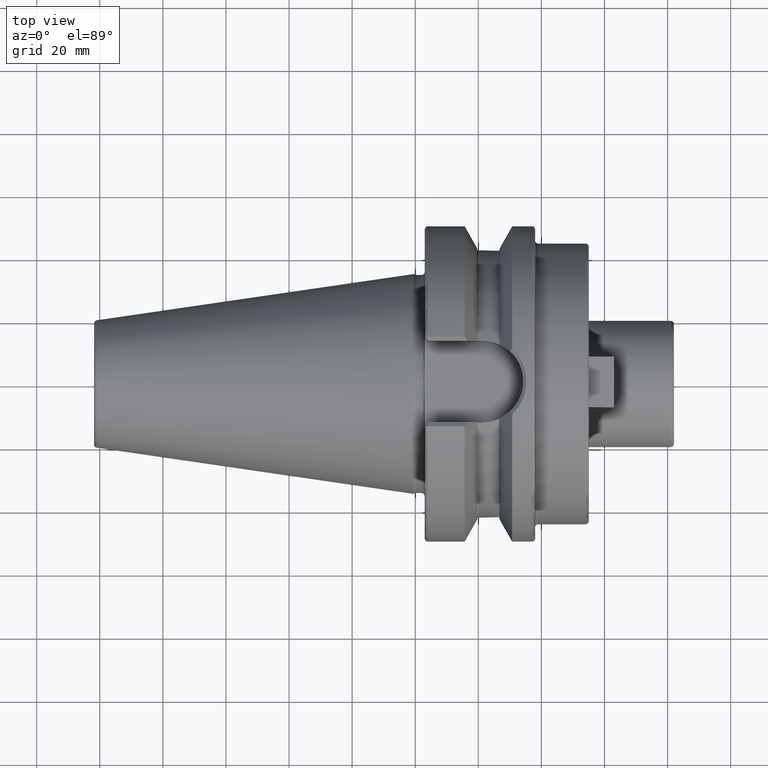
[diagram: clean part render]
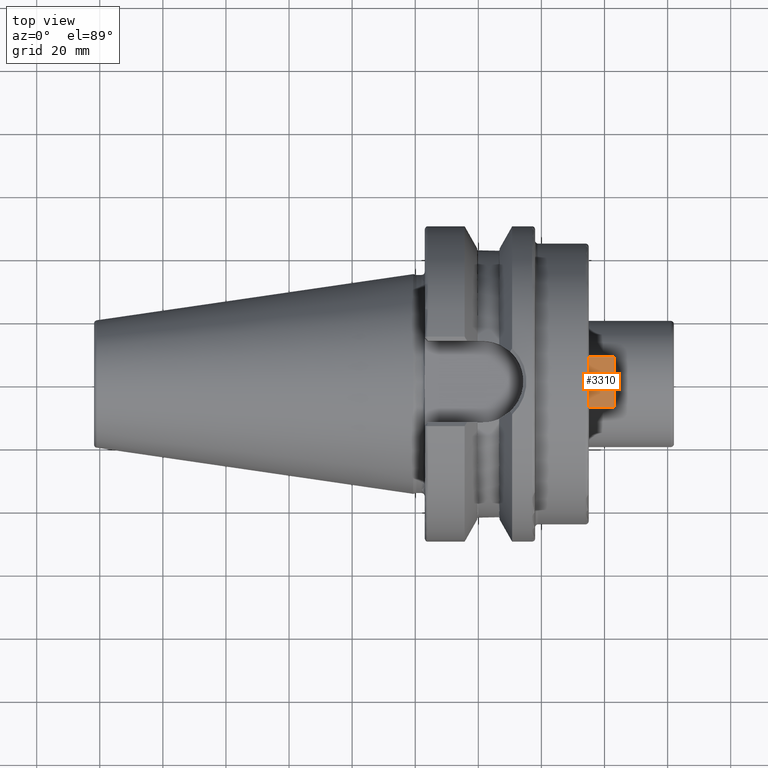
[diagram: same view with one face highlighted and labeled with its STEP entity id]
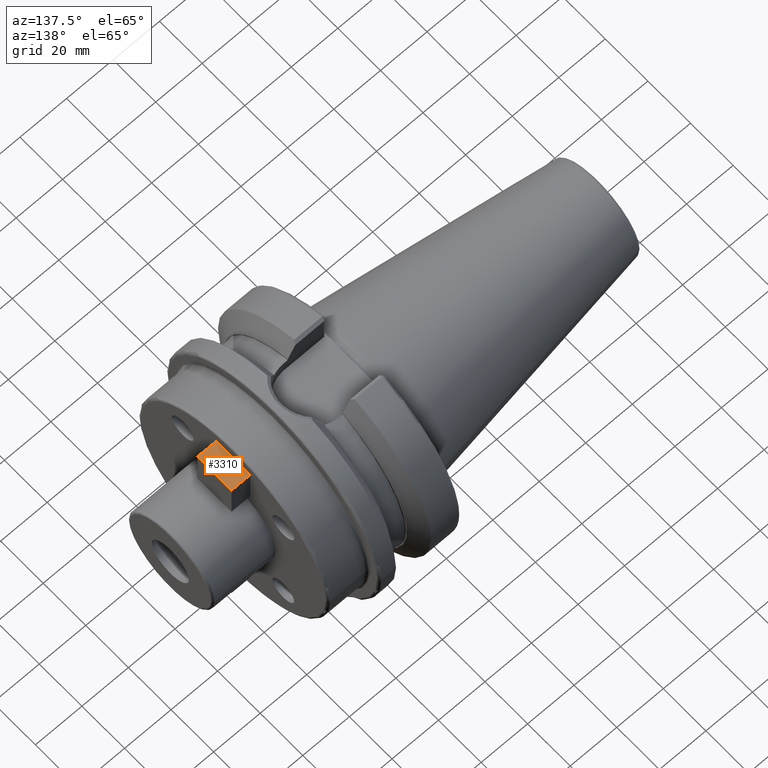
[diagram: same view with one face highlighted and labeled with its STEP entity id]
A machine part, top view. The second image highlights one B-rep face of the part: STEP entity #3310.
A second angle (auxiliary view) of the same face is appended — the face is thin or edge-on in the first view.
In plain terms, the highlighted planar face has unit normal (0, 0, 1).
Its self-contained STEP definition (entity closure, byte-faithful):
#932=DIRECTION('',(0.E0,-1.E0,0.E0));
#933=VECTOR('',#932,1.6E1);
#934=CARTESIAN_POINT('',(5.5E1,8.E0,3.85E1));
#935=LINE('',#934,#933);
#1102=DIRECTION('',(0.E0,-1.E0,0.E0));
#1103=VECTOR('',#1102,1.6E1);
#1104=CARTESIAN_POINT('',(6.3E1,8.E0,3.85E1));
#1105=LINE('',#1104,#1103);
#1114=DIRECTION('',(1.E0,0.E0,0.E0));
#1115=VECTOR('',#1114,8.E0);
#1116=CARTESIAN_POINT('',(5.5E1,-8.E0,3.85E1));
#1117=LINE('',#1116,#1115);
#1118=DIRECTION('',(1.E0,0.E0,0.E0));
#1119=VECTOR('',#1118,8.E0);
#1120=CARTESIAN_POINT('',(5.5E1,8.E0,3.85E1));
#1121=LINE('',#1120,#1119);
#1682=CARTESIAN_POINT('',(6.3E1,8.E0,3.85E1));
#1684=VERTEX_POINT('',#1682);
#1685=CARTESIAN_POINT('',(6.3E1,-8.E0,3.85E1));
#1686=VERTEX_POINT('',#1685);
#1699=CARTESIAN_POINT('',(5.5E1,8.E0,3.85E1));
#1700=VERTEX_POINT('',#1699);
#1701=CARTESIAN_POINT('',(5.5E1,-8.E0,3.85E1));
#1702=VERTEX_POINT('',#1701);
#3299=CARTESIAN_POINT('',(5.5E1,8.E0,3.85E1));
#3300=DIRECTION('',(0.E0,0.E0,1.E0));
#3301=DIRECTION('',(0.E0,-1.E0,0.E0));
#3302=AXIS2_PLACEMENT_3D('',#3299,#3300,#3301);
#3303=PLANE('',#3302);
#3304=ORIENTED_EDGE('',*,*,#3267,.T.);
#3305=ORIENTED_EDGE('',*,*,#3254,.T.);
#3306=ORIENTED_EDGE('',*,*,#3291,.F.);
#3307=ORIENTED_EDGE('',*,*,#3018,.F.);
#3308=EDGE_LOOP('',(#3304,#3305,#3306,#3307));
#3309=FACE_OUTER_BOUND('',#3308,.F.);
#3310=ADVANCED_FACE('',(#3309),#3303,.T.);
#3018=EDGE_CURVE('',#1700,#1702,#935,.T.);
#3254=EDGE_CURVE('',#1684,#1686,#1105,.T.);
#3267=EDGE_CURVE('',#1700,#1684,#1121,.T.);
#3291=EDGE_CURVE('',#1702,#1686,#1117,.T.);